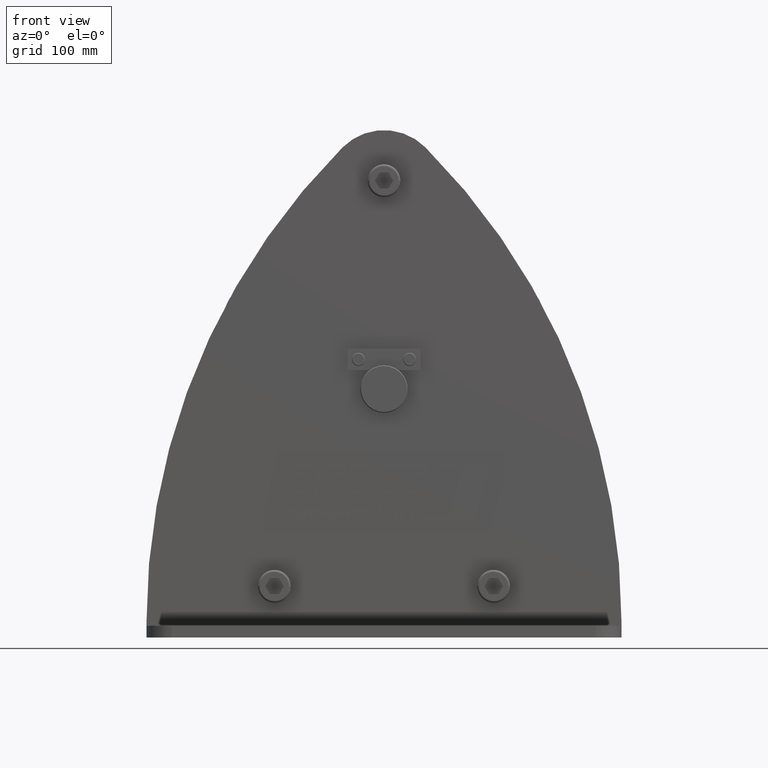
[diagram: clean part render]
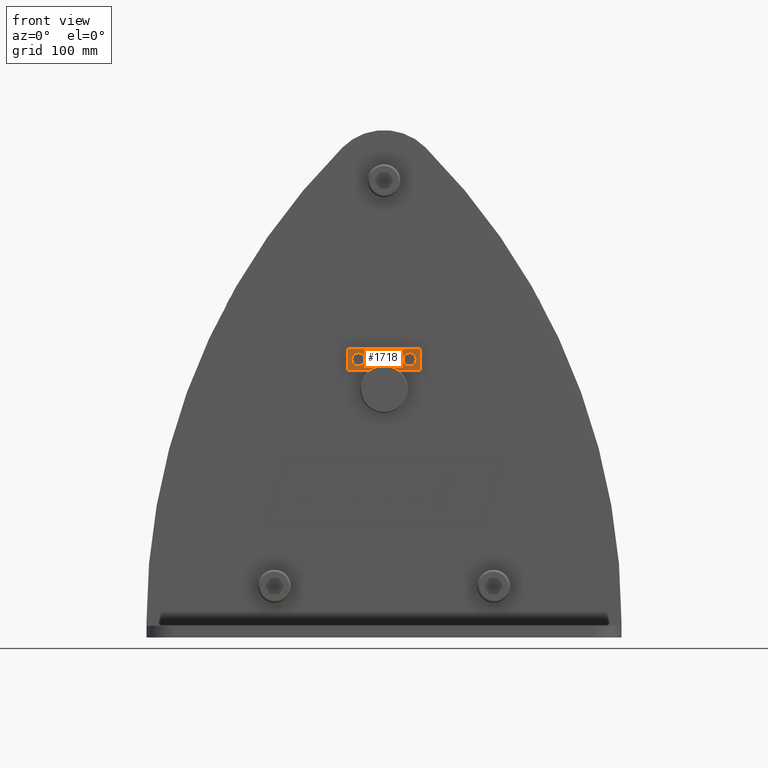
[diagram: same view with one face highlighted and labeled with its STEP entity id]
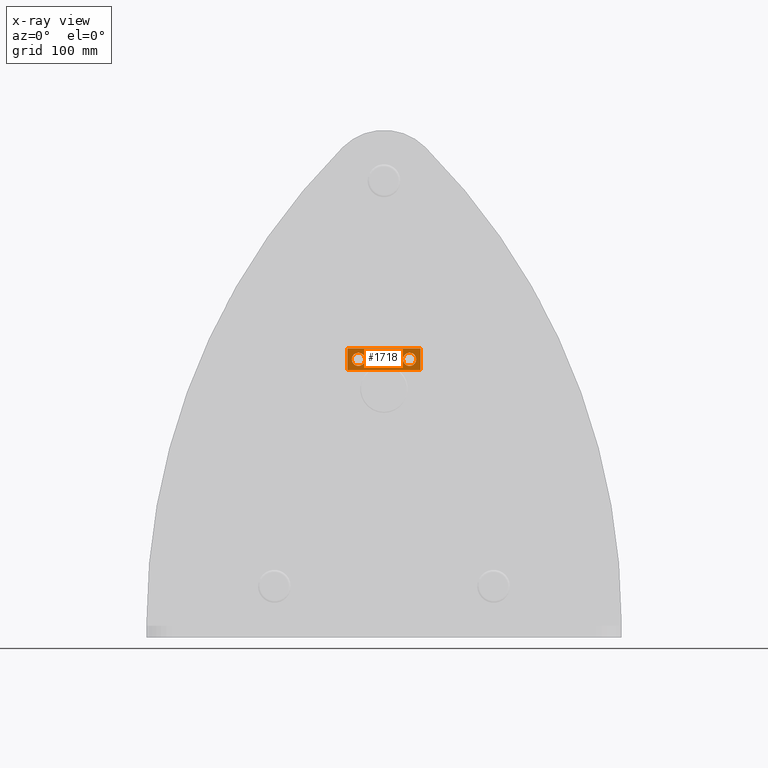
[diagram: x-ray of the same camera — body ghosted, the highlighted face saturated]
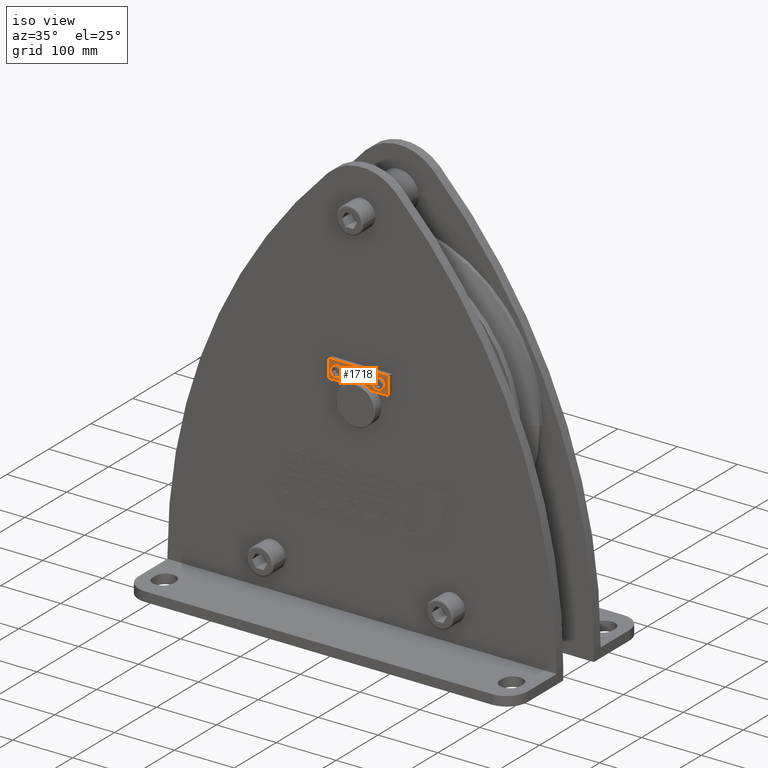
[diagram: same view with one face highlighted and labeled with its STEP entity id]
A machine part, front view. The second image highlights one B-rep face of the part: STEP entity #1718.
The next image is the same camera in x-ray: the body ghosted, the highlighted face saturated — about 0% of this face is hidden behind the body in this view.
A second angle (iso view) of the same face is appended — the face is thin or edge-on in the first view.
In plain terms, the highlighted planar face has unit normal (-0, 1, 0).
Its self-contained STEP definition (entity closure, byte-faithful):
#1718=ADVANCED_FACE('',(#3620,#3621,#3622),#3623,.F.);
#3620=FACE_BOUND('',#5652,.T.);
#3621=FACE_BOUND('',#5653,.T.);
#3622=FACE_OUTER_BOUND('',#5654,.T.);
#3623=PLANE('',#5655);
#5652=EDGE_LOOP('',(#11120,#11121));
#5653=EDGE_LOOP('',(#11122,#11123));
#5654=EDGE_LOOP('',(#11124,#11125,#11126,#11127));
#5655=AXIS2_PLACEMENT_3D('',#11128,#11129,#11130);
#11120=ORIENTED_EDGE('',*,*,#14116,.T.);
#11121=ORIENTED_EDGE('',*,*,#12164,.T.);
#11122=ORIENTED_EDGE('',*,*,#13711,.T.);
#11123=ORIENTED_EDGE('',*,*,#12569,.T.);
#11124=ORIENTED_EDGE('',*,*,#14105,.T.);
#11125=ORIENTED_EDGE('',*,*,#14114,.T.);
#11126=ORIENTED_EDGE('',*,*,#14111,.T.);
#11127=ORIENTED_EDGE('',*,*,#14108,.T.);
#11128=CARTESIAN_POINT('',(0.0,-60.5,40.5));
#11129=DIRECTION('',(-0.0,1.0,0.0));
#11130=DIRECTION('',(1.0,0.0,0.0));
#12164=EDGE_CURVE('',#14614,#14618,#14620,.T.);
#12569=EDGE_CURVE('',#15291,#15293,#15295,.T.);
#13711=EDGE_CURVE('',#15293,#15291,#16998,.T.);
#14105=EDGE_CURVE('',#17505,#17503,#17506,.T.);
#14108=EDGE_CURVE('',#17509,#17505,#17510,.T.);
#14111=EDGE_CURVE('',#17513,#17509,#17514,.T.);
#14114=EDGE_CURVE('',#17503,#17513,#17517,.T.);
#14116=EDGE_CURVE('',#14618,#14614,#17519,.T.);
#14614=VERTEX_POINT('',#19371);
#14618=VERTEX_POINT('',#19376);
#14620=CIRCLE('',#19379,9.0);
#15291=VERTEX_POINT('',#22157);
#15293=VERTEX_POINT('',#22160);
#15295=CIRCLE('',#22163,9.0);
#16998=CIRCLE('',#24483,9.0);
#17503=VERTEX_POINT('',#26183);
#17505=VERTEX_POINT('',#26186);
#17506=LINE('',#26187,#26188);
#17509=VERTEX_POINT('',#26192);
#17510=LINE('',#26193,#26194);
#17513=VERTEX_POINT('',#26198);
#17514=LINE('',#26199,#26200);
#17517=LINE('',#26204,#26205);
#17519=CIRCLE('',#26207,9.0);
#19371=CARTESIAN_POINT('',(-26.0,-60.5,40.5));
#19376=CARTESIAN_POINT('',(-44.0,-60.5,40.5));
#19379=AXIS2_PLACEMENT_3D('',#26938,#26939,#26940);
#22157=CARTESIAN_POINT('',(44.0,-60.5,40.5));
#22160=CARTESIAN_POINT('',(26.0,-60.5,40.5));
#22163=AXIS2_PLACEMENT_3D('',#27522,#27523,#27524);
#24483=AXIS2_PLACEMENT_3D('',#28811,#28812,#28813);
#26183=CARTESIAN_POINT('',(50.0,-60.5,55.5));
#26186=CARTESIAN_POINT('',(50.0,-60.5,25.5));
#26187=CARTESIAN_POINT('',(50.0,-60.5,40.5));
#26188=VECTOR('',#29213,1.0);
#26192=CARTESIAN_POINT('',(-50.0,-60.5,25.5));
#26193=CARTESIAN_POINT('',(0.0,-60.5,25.5));
#26194=VECTOR('',#29215,1.0);
#26198=CARTESIAN_POINT('',(-50.0,-60.5,55.5));
#26199=CARTESIAN_POINT('',(-50.0,-60.5,40.5));
#26200=VECTOR('',#29217,1.0);
#26204=CARTESIAN_POINT('',(0.0,-60.5,55.5));
#26205=VECTOR('',#29219,1.0);
#26207=AXIS2_PLACEMENT_3D('',#29220,#29221,#29222);
#26938=CARTESIAN_POINT('',(-35.0,-60.5,40.5));
#26939=DIRECTION('',(-0.0,1.0,0.0));
#26940=DIRECTION('',(1.0,0.0,0.0));
#27522=CARTESIAN_POINT('',(35.0,-60.5,40.5));
#27523=DIRECTION('',(-0.0,1.0,0.0));
#27524=DIRECTION('',(1.0,0.0,0.0));
#28811=CARTESIAN_POINT('',(35.0,-60.5,40.5));
#28812=DIRECTION('',(-0.0,1.0,0.0));
#28813=DIRECTION('',(1.0,0.0,0.0));
#29213=DIRECTION('',(0.0,0.0,1.0));
#29215=DIRECTION('',(1.0,0.0,0.0));
#29217=DIRECTION('',(0.0,0.0,-1.0));
#29219=DIRECTION('',(-1.0,0.0,0.0));
#29220=CARTESIAN_POINT('',(-35.0,-60.5,40.5));
#29221=DIRECTION('',(-0.0,1.0,0.0));
#29222=DIRECTION('',(1.0,0.0,0.0));